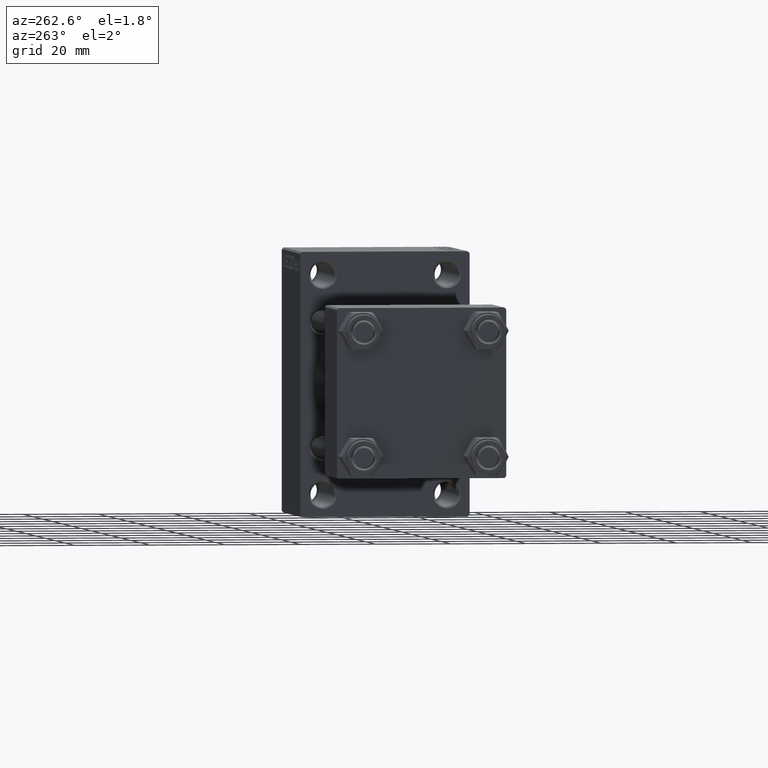
[diagram: clean part render]
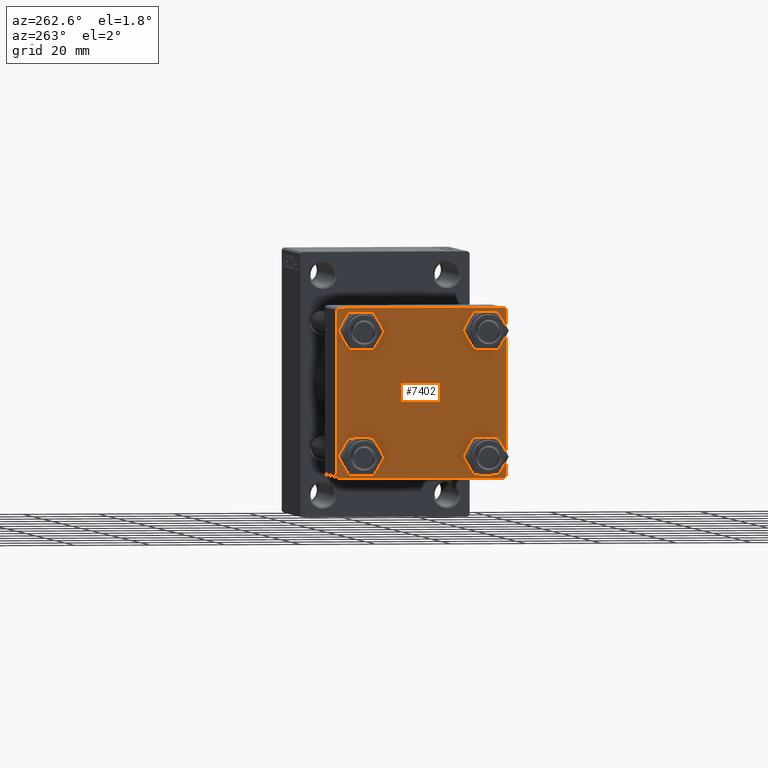
[diagram: same view with one face highlighted and labeled with its STEP entity id]
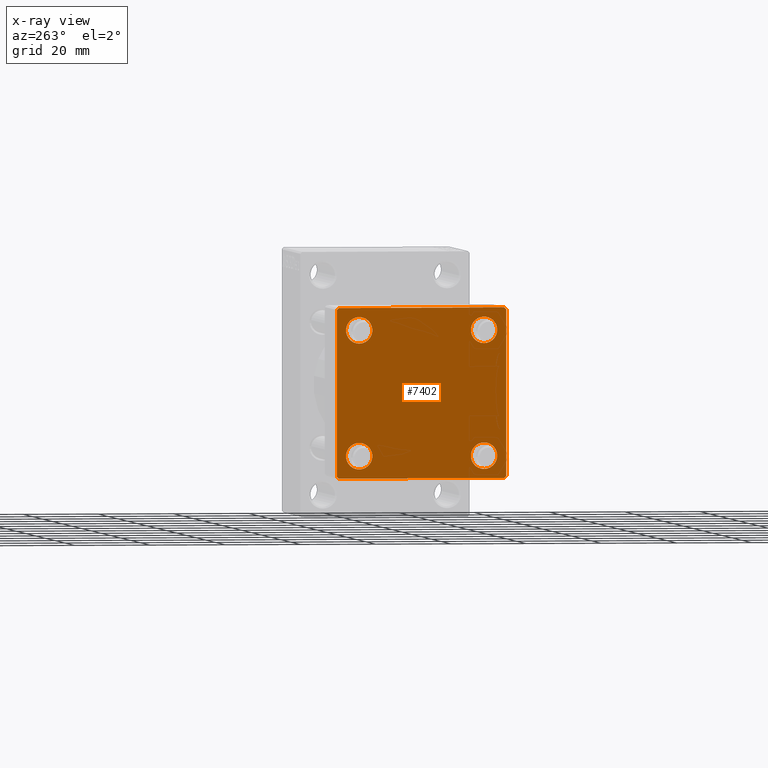
[diagram: x-ray of the same camera — body ghosted, the highlighted face saturated]
A machine part, auxiliary view. The second image highlights one B-rep face of the part: STEP entity #7402.
The next image is the same camera in x-ray: the body ghosted, the highlighted face saturated — about 0% of this face is hidden behind the body in this view.
In plain terms, the highlighted planar face has unit normal (-1, 0, 0).
Its self-contained STEP definition (entity closure, byte-faithful):
#442 = CARTESIAN_POINT ( 'NONE',  ( 0.000000000000000000, 22.50000000000000000, 22.50000000000000355 ) ) ;
#524 = CARTESIAN_POINT ( 'NONE',  ( 0.000000000000000000, -16.59999999999999076, 16.60000000000000853 ) ) ;
#871 = DIRECTION ( 'NONE',  ( 0.000000000000000000, 0.000000000000000000, 1.000000000000000000 ) ) ;
#927 = EDGE_CURVE ( 'NONE', #39381, #41367, #27698, .T. ) ;
#1585 = EDGE_CURVE ( 'NONE', #8260, #18345, #45675, .T. ) ;
#1686 = VERTEX_POINT ( 'NONE', #32160 ) ;
#1708 = LINE ( 'NONE', #8701, #20996 ) ;
#2576 = AXIS2_PLACEMENT_3D ( 'NONE', #39057, #8335, #33842 ) ;
#2779 = AXIS2_PLACEMENT_3D ( 'NONE', #524, #15212, #29882 ) ;
#3260 = CARTESIAN_POINT ( 'NONE',  ( 0.000000000000000000, 16.59999999999999787, -16.60000000000000497 ) ) ;
#3292 = VECTOR ( 'NONE', #43961, 999.9999999999998863 ) ;
#3510 = EDGE_LOOP ( 'NONE', ( #29624, #41763 ) ) ;
#3599 = FACE_BOUND ( 'NONE', #9580, .T. ) ;
#3908 = EDGE_CURVE ( 'NONE', #1686, #31160, #44715, .T. ) ;
#3965 = VERTEX_POINT ( 'NONE', #20829 ) ;
#4027 = CIRCLE ( 'NONE', #2576, 3.499999999999996003 ) ;
#4030 = AXIS2_PLACEMENT_3D ( 'NONE', #16532, #9287, #42504 ) ;
#4088 = VERTEX_POINT ( 'NONE', #25624 ) ;
#4485 = DIRECTION ( 'NONE',  ( 1.000000000000000000, -0.000000000000000000, 0.000000000000000000 ) ) ;
#4778 = AXIS2_PLACEMENT_3D ( 'NONE', #5749, #16357, #9593 ) ;
#5095 = EDGE_CURVE ( 'NONE', #42123, #33036, #30144, .T. ) ;
#5749 = CARTESIAN_POINT ( 'NONE',  ( 0.000000000000000000, -16.59999999999999076, -16.60000000000000853 ) ) ;
#5805 = CIRCLE ( 'NONE', #44235, 3.499999999999996003 ) ;
#6289 = CARTESIAN_POINT ( 'NONE',  ( 0.000000000000000000, -21.99999999999997868, 22.50000000000000000 ) ) ;
#7402 = ADVANCED_FACE ( 'NONE', ( #11772, #3599, #18296, #11062, #40413 ), #18532, .T. ) ;
#7696 = EDGE_CURVE ( 'NONE', #40338, #4088, #4027, .T. ) ;
#8260 = VERTEX_POINT ( 'NONE', #20419 ) ;
#8335 = DIRECTION ( 'NONE',  ( 1.000000000000000000, -0.000000000000000000, 0.000000000000000000 ) ) ;
#8387 = DIRECTION ( 'NONE',  ( 0.000000000000000000, 0.000000000000000000, 1.000000000000000000 ) ) ;
#8495 = DIRECTION ( 'NONE',  ( 0.000000000000000000, 0.000000000000000000, -1.000000000000000000 ) ) ;
#8522 = ORIENTED_EDGE ( 'NONE', *, *, #38821, .F. ) ;
#8701 = CARTESIAN_POINT ( 'NONE',  ( 0.000000000000000000, 22.50000000000000000, 22.50000000000000355 ) ) ;
#9287 = DIRECTION ( 'NONE',  ( 1.000000000000000000, -0.000000000000000000, 0.000000000000000000 ) ) ;
#9474 = EDGE_CURVE ( 'NONE', #18345, #18966, #13135, .T. ) ;
#9580 = EDGE_LOOP ( 'NONE', ( #14243, #19680 ) ) ;
#9593 = DIRECTION ( 'NONE',  ( 0.000000000000000000, 0.000000000000000000, 1.000000000000000000 ) ) ;
#9997 = EDGE_CURVE ( 'NONE', #22275, #8260, #29080, .T. ) ;
#11062 = FACE_BOUND ( 'NONE', #35251, .T. ) ;
#11186 = ORIENTED_EDGE ( 'NONE', *, *, #9474, .T. ) ;
#11772 = FACE_BOUND ( 'NONE', #15865, .T. ) ;
#13135 = LINE ( 'NONE', #19423, #14823 ) ;
#14230 = LINE ( 'NONE', #36370, #30134 ) ;
#14243 = ORIENTED_EDGE ( 'NONE', *, *, #927, .T. ) ;
#14345 = DIRECTION ( 'NONE',  ( 0.000000000000000000, 0.000000000000000000, 1.000000000000000000 ) ) ;
#14823 = VECTOR ( 'NONE', #38427, 1000.000000000000000 ) ;
#14849 = LINE ( 'NONE', #23013, #3292 ) ;
#15048 = CARTESIAN_POINT ( 'NONE',  ( 0.000000000000000000, -16.59999999999999076, -13.10000000000001030 ) ) ;
#15212 = DIRECTION ( 'NONE',  ( 1.000000000000000000, -0.000000000000000000, 0.000000000000000000 ) ) ;
#15536 = CIRCLE ( 'NONE', #4778, 3.499999999999996003 ) ;
#15682 = EDGE_CURVE ( 'NONE', #33036, #42123, #5805, .T. ) ;
#15865 = EDGE_LOOP ( 'NONE', ( #36470, #34550 ) ) ;
#15936 = DIRECTION ( 'NONE',  ( 0.000000000000000000, -1.000000000000000000, -7.709882115452476934E-17 ) ) ;
#15966 = CARTESIAN_POINT ( 'NONE',  ( 0.000000000000000000, -22.50000000000000000, 22.50000000000000000 ) ) ;
#16328 = DIRECTION ( 'NONE',  ( -0.000000000000000000, 0.000000000000000000, 1.000000000000000000 ) ) ;
#16357 = DIRECTION ( 'NONE',  ( 1.000000000000000000, -0.000000000000000000, 0.000000000000000000 ) ) ;
#16518 = DIRECTION ( 'NONE',  ( 0.000000000000000000, 0.7071067811865474617, -0.7071067811865474617 ) ) ;
#16532 = CARTESIAN_POINT ( 'NONE',  ( 0.000000000000000000, 16.59999999999999787, -16.60000000000000497 ) ) ;
#16559 = CARTESIAN_POINT ( 'NONE',  ( 0.000000000000000000, 16.59999999999999787, 16.60000000000000497 ) ) ;
#17079 = CARTESIAN_POINT ( 'NONE',  ( 0.000000000000000000, -22.50000000000000000, -21.99999999999997158 ) ) ;
#17369 = DIRECTION ( 'NONE',  ( 0.000000000000000000, -0.7071067811865426878, 0.7071067811865524577 ) ) ;
#18296 = FACE_BOUND ( 'NONE', #3510, .T. ) ;
#18312 = EDGE_CURVE ( 'NONE', #4088, #40338, #18956, .T. ) ;
#18345 = VERTEX_POINT ( 'NONE', #30112 ) ;
#18532 = PLANE ( 'NONE',  #46358 ) ;
#18925 = ORIENTED_EDGE ( 'NONE', *, *, #21798, .F. ) ;
#18956 = CIRCLE ( 'NONE', #2779, 3.499999999999996003 ) ;
#18966 = VERTEX_POINT ( 'NONE', #41533 ) ;
#19327 = ORIENTED_EDGE ( 'NONE', *, *, #32784, .T. ) ;
#19423 = CARTESIAN_POINT ( 'NONE',  ( 0.000000000000000000, 22.50000000000000000, -22.49999999999999645 ) ) ;
#19680 = ORIENTED_EDGE ( 'NONE', *, *, #36714, .T. ) ;
#19694 = DIRECTION ( 'NONE',  ( 1.000000000000000000, -0.000000000000000000, 0.000000000000000000 ) ) ;
#20307 = ORIENTED_EDGE ( 'NONE', *, *, #23535, .T. ) ;
#20419 = CARTESIAN_POINT ( 'NONE',  ( 0.000000000000000000, 22.50000000000000000, -21.99999999999996803 ) ) ;
#20829 = CARTESIAN_POINT ( 'NONE',  ( 0.000000000000000000, -22.50000000000000000, 22.00000000000000000 ) ) ;
#20996 = VECTOR ( 'NONE', #15936, 1000.000000000000000 ) ;
#21551 = CIRCLE ( 'NONE', #45397, 3.499999999999996003 ) ;
#21757 = VECTOR ( 'NONE', #47375, 1000.000000000000000 ) ;
#21798 = EDGE_CURVE ( 'NONE', #3965, #31678, #26555, .T. ) ;
#21832 = CARTESIAN_POINT ( 'NONE',  ( 0.000000000000000000, 16.59999999999999787, -13.10000000000000675 ) ) ;
#21842 = LINE ( 'NONE', #37706, #43595 ) ;
#22275 = VERTEX_POINT ( 'NONE', #29336 ) ;
#22780 = CARTESIAN_POINT ( 'NONE',  ( 0.000000000000000000, 16.59999999999999787, 16.60000000000000497 ) ) ;
#22812 = VECTOR ( 'NONE', #8495, 1000.000000000000000 ) ;
#23013 = CARTESIAN_POINT ( 'NONE',  ( -0.000000000000000000, -22.24999999999984013, 22.25000000000015277 ) ) ;
#23146 = VECTOR ( 'NONE', #33659, 1000.000000000000000 ) ;
#23208 = AXIS2_PLACEMENT_3D ( 'NONE', #22780, #4485, #871 ) ;
#23535 = EDGE_CURVE ( 'NONE', #31926, #22275, #21842, .T. ) ;
#23850 = AXIS2_PLACEMENT_3D ( 'NONE', #32355, #29220, #47037 ) ;
#25624 = CARTESIAN_POINT ( 'NONE',  ( 0.000000000000000000, -16.59999999999999076, 13.10000000000001030 ) ) ;
#26555 = LINE ( 'NONE', #15966, #22812 ) ;
#26618 = CARTESIAN_POINT ( 'NONE',  ( 0.000000000000000000, 16.59999999999999787, -20.10000000000000142 ) ) ;
#27190 = CARTESIAN_POINT ( 'NONE',  ( 0.000000000000000000, 16.59999999999999787, 20.10000000000000142 ) ) ;
#27698 = CIRCLE ( 'NONE', #23850, 3.499999999999996003 ) ;
#29080 = LINE ( 'NONE', #442, #21757 ) ;
#29220 = DIRECTION ( 'NONE',  ( 1.000000000000000000, -0.000000000000000000, 0.000000000000000000 ) ) ;
#29336 = CARTESIAN_POINT ( 'NONE',  ( 0.000000000000000000, 22.50000000000000000, 21.99999999999999645 ) ) ;
#29624 = ORIENTED_EDGE ( 'NONE', *, *, #5095, .T. ) ;
#29882 = DIRECTION ( 'NONE',  ( 0.000000000000000000, 0.000000000000000000, 1.000000000000000000 ) ) ;
#30112 = CARTESIAN_POINT ( 'NONE',  ( 0.000000000000000000, 21.99999999999999289, -22.49999999999999645 ) ) ;
#30134 = VECTOR ( 'NONE', #17369, 1000.000000000000000 ) ;
#30144 = CIRCLE ( 'NONE', #4030, 3.499999999999996003 ) ;
#31160 = VERTEX_POINT ( 'NONE', #27190 ) ;
#31678 = VERTEX_POINT ( 'NONE', #17079 ) ;
#31926 = VERTEX_POINT ( 'NONE', #38917 ) ;
#32160 = CARTESIAN_POINT ( 'NONE',  ( 0.000000000000000000, 16.59999999999999787, 13.10000000000000675 ) ) ;
#32355 = CARTESIAN_POINT ( 'NONE',  ( 0.000000000000000000, -16.59999999999999076, -16.60000000000000853 ) ) ;
#32631 = DIRECTION ( 'NONE',  ( 1.000000000000000000, -0.000000000000000000, 0.000000000000000000 ) ) ;
#32784 = EDGE_CURVE ( 'NONE', #31160, #1686, #21551, .T. ) ;
#33036 = VERTEX_POINT ( 'NONE', #26618 ) ;
#33196 = CARTESIAN_POINT ( 'NONE',  ( 0.000000000000000000, 0.000000000000000000, 0.000000000000000000 ) ) ;
#33659 = DIRECTION ( 'NONE',  ( -0.000000000000000000, -0.7071067811865426878, -0.7071067811865524577 ) ) ;
#33842 = DIRECTION ( 'NONE',  ( 0.000000000000000000, 0.000000000000000000, 1.000000000000000000 ) ) ;
#34550 = ORIENTED_EDGE ( 'NONE', *, *, #18312, .T. ) ;
#35251 = EDGE_LOOP ( 'NONE', ( #19327, #38532 ) ) ;
#35604 = ORIENTED_EDGE ( 'NONE', *, *, #42272, .T. ) ;
#35788 = ORIENTED_EDGE ( 'NONE', *, *, #1585, .T. ) ;
#36370 = CARTESIAN_POINT ( 'NONE',  ( 0.000000000000000000, -22.25000000000014566, -22.24999999999984013 ) ) ;
#36377 = EDGE_CURVE ( 'NONE', #18966, #31678, #14230, .T. ) ;
#36470 = ORIENTED_EDGE ( 'NONE', *, *, #7696, .T. ) ;
#36714 = EDGE_CURVE ( 'NONE', #41367, #39381, #15536, .T. ) ;
#36810 = ORIENTED_EDGE ( 'NONE', *, *, #9997, .T. ) ;
#37706 = CARTESIAN_POINT ( 'NONE',  ( 0.000000000000000000, 22.24999999999999645, 22.24999999999999645 ) ) ;
#37736 = CARTESIAN_POINT ( 'NONE',  ( 0.000000000000000000, -16.59999999999999076, 20.10000000000000853 ) ) ;
#38427 = DIRECTION ( 'NONE',  ( 0.000000000000000000, -1.000000000000000000, -2.312964634635742957E-16 ) ) ;
#38532 = ORIENTED_EDGE ( 'NONE', *, *, #3908, .T. ) ;
#38821 = EDGE_CURVE ( 'NONE', #31926, #40548, #1708, .T. ) ;
#38917 = CARTESIAN_POINT ( 'NONE',  ( 0.000000000000000000, 21.99999999999999289, 22.50000000000000355 ) ) ;
#39057 = CARTESIAN_POINT ( 'NONE',  ( 0.000000000000000000, -16.59999999999999076, 16.60000000000000853 ) ) ;
#39381 = VERTEX_POINT ( 'NONE', #15048 ) ;
#39533 = EDGE_LOOP ( 'NONE', ( #36810, #35788, #11186, #41259, #18925, #35604, #8522, #20307 ) ) ;
#40338 = VERTEX_POINT ( 'NONE', #37736 ) ;
#40413 = FACE_OUTER_BOUND ( 'NONE', #39533, .T. ) ;
#40548 = VERTEX_POINT ( 'NONE', #6289 ) ;
#41259 = ORIENTED_EDGE ( 'NONE', *, *, #36377, .T. ) ;
#41367 = VERTEX_POINT ( 'NONE', #42232 ) ;
#41533 = CARTESIAN_POINT ( 'NONE',  ( 0.000000000000000000, -21.99999999999997158, -22.50000000000000711 ) ) ;
#41763 = ORIENTED_EDGE ( 'NONE', *, *, #15682, .T. ) ;
#41836 = DIRECTION ( 'NONE',  ( -1.000000000000000000, 0.000000000000000000, -0.000000000000000000 ) ) ;
#42050 = CARTESIAN_POINT ( 'NONE',  ( 0.000000000000000000, 22.25000000000014566, -22.24999999999984013 ) ) ;
#42123 = VERTEX_POINT ( 'NONE', #21832 ) ;
#42232 = CARTESIAN_POINT ( 'NONE',  ( 0.000000000000000000, -16.59999999999999076, -20.10000000000000497 ) ) ;
#42272 = EDGE_CURVE ( 'NONE', #3965, #40548, #14849, .T. ) ;
#42504 = DIRECTION ( 'NONE',  ( 0.000000000000000000, 0.000000000000000000, 1.000000000000000000 ) ) ;
#43595 = VECTOR ( 'NONE', #16518, 1000.000000000000114 ) ;
#43961 = DIRECTION ( 'NONE',  ( -0.000000000000000000, 0.7071067811865525687, 0.7071067811865425767 ) ) ;
#44235 = AXIS2_PLACEMENT_3D ( 'NONE', #3260, #32631, #14345 ) ;
#44715 = CIRCLE ( 'NONE', #23208, 3.499999999999996003 ) ;
#45397 = AXIS2_PLACEMENT_3D ( 'NONE', #16559, #19694, #8387 ) ;
#45675 = LINE ( 'NONE', #42050, #23146 ) ;
#46358 = AXIS2_PLACEMENT_3D ( 'NONE', #33196, #41836, #16328 ) ;
#47037 = DIRECTION ( 'NONE',  ( 0.000000000000000000, 0.000000000000000000, 1.000000000000000000 ) ) ;
#47375 = DIRECTION ( 'NONE',  ( 0.000000000000000000, 0.000000000000000000, -1.000000000000000000 ) ) ;